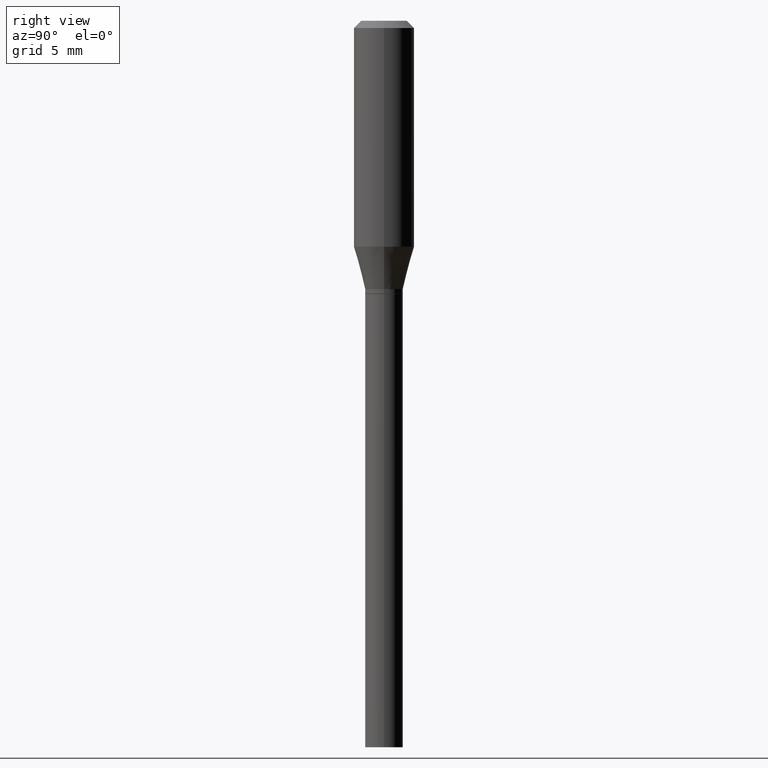
[diagram: clean part render]
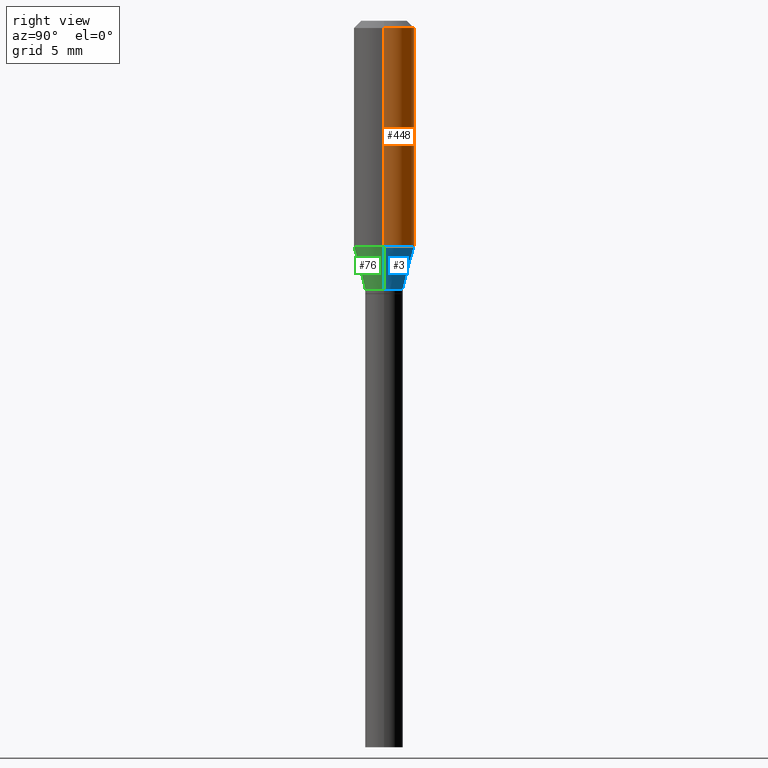
[diagram: same view with three faces highlighted in distinct colors, each labeled with its STEP entity id]
A machine part, right view with three faces highlighted in distinct colors.
Their STEP definitions:

[orange] entity #448 — the highlighted cylindrical surface (edge-blend (fillet) strip) has radius 1.5875 mm, axis along (-0, 0, 1).
#13 = CIRCLE ( 'NONE', #338, 0.06250000000000000000 ) ;
#14 = CIRCLE ( 'NONE', #347, 0.06250000000000000000 ) ;
#22 = DIRECTION ( 'NONE',  ( 1.000000000000000000, -6.982962677686266711E-15, 0.000000000000000000 ) ) ;
#62 = DIRECTION ( 'NONE',  ( -2.445468806185136597E-29, 3.491481338843145583E-15, 1.000000000000000000 ) ) ;
#70 = EDGE_CURVE ( 'NONE', #100, #153, #107, .T. ) ;
#73 = DIRECTION ( 'NONE',  ( -2.445468806185136877E-29, 3.491481338843145188E-15, 1.000000000000000000 ) ) ;
#75 = VECTOR ( 'NONE', #445, 39.37007874015748143 ) ;
#100 = VERTEX_POINT ( 'NONE', #196 ) ;
#107 = LINE ( 'NONE', #396, #135 ) ;
#108 = DIRECTION ( 'NONE',  ( -2.445468806185136597E-29, 3.491481338843145583E-15, 1.000000000000000000 ) ) ;
#109 = CARTESIAN_POINT ( 'NONE',  ( -0.06250000000000000000, -3.961301984854776856E-16, -0.01499999999999999944 ) ) ;
#111 = DIRECTION ( 'NONE',  ( 1.000000000000000000, -6.982962677686266711E-15, 0.000000000000000000 ) ) ;
#115 = FACE_OUTER_BOUND ( 'NONE', #198, .T. ) ;
#117 = ORIENTED_EDGE ( 'NONE', *, *, #285, .T. ) ;
#123 = CARTESIAN_POINT ( 'NONE',  ( 0.06250000000000000000, -4.364351673553916694E-16, 3.047610484872459871E-30 ) ) ;
#126 = LINE ( 'NONE', #123, #75 ) ;
#127 = VERTEX_POINT ( 'NONE', #330 ) ;
#135 = VECTOR ( 'NONE', #73, 39.37007874015748143 ) ;
#153 = VERTEX_POINT ( 'NONE', #109 ) ;
#154 = CARTESIAN_POINT ( 'NONE',  ( 0.06250000000000000000, -4.888073874380388472E-16, -0.01499999999999999944 ) ) ;
#193 = VERTEX_POINT ( 'NONE', #154 ) ;
#196 = CARTESIAN_POINT ( 'NONE',  ( -0.06250000000000000000, -1.183977386738370809E-15, -0.4662968060221312494 ) ) ;
#197 = EDGE_CURVE ( 'NONE', #193, #153, #13, .T. ) ;
#198 = EDGE_LOOP ( 'NONE', ( #117, #261, #305, #431 ) ) ;
#204 = EDGE_CURVE ( 'NONE', #127, #193, #126, .T. ) ;
#209 = DIRECTION ( 'NONE',  ( 1.000000000000000000, -6.982962677686266711E-15, 4.876176775795935793E-29 ) ) ;
#225 = CARTESIAN_POINT ( 'NONE',  ( 1.140314293550883428E-29, -1.628066596588433426E-15, -0.4662968060221312494 ) ) ;
#261 = ORIENTED_EDGE ( 'NONE', *, *, #70, .T. ) ;
#285 = EDGE_CURVE ( 'NONE', #127, #100, #14, .T. ) ;
#300 = CARTESIAN_POINT ( 'NONE',  ( 3.668203209277705088E-31, -5.237222008264718399E-17, -0.01499999999999999944 ) ) ;
#305 = ORIENTED_EDGE ( 'NONE', *, *, #197, .F. ) ;
#311 = CARTESIAN_POINT ( 'NONE',  ( 0.000000000000000000, 0.000000000000000000, 0.000000000000000000 ) ) ;
#330 = CARTESIAN_POINT ( 'NONE',  ( 0.06250000000000000000, -2.064501763943824898E-15, -0.4662968060221312494 ) ) ;
#338 = AXIS2_PLACEMENT_3D ( 'NONE', #300, #62, #111 ) ;
#347 = AXIS2_PLACEMENT_3D ( 'NONE', #225, #405, #22 ) ;
#352 = AXIS2_PLACEMENT_3D ( 'NONE', #311, #108, #209 ) ;
#361 = CYLINDRICAL_SURFACE ( 'NONE', #352, 0.06250000000000000000 ) ;
#396 = CARTESIAN_POINT ( 'NONE',  ( -0.06250000000000000000, 4.440892098500626162E-16, -3.074334431409316114E-30 ) ) ;
#405 = DIRECTION ( 'NONE',  ( -2.445468806185136597E-29, 3.491481338843145583E-15, 1.000000000000000000 ) ) ;
#431 = ORIENTED_EDGE ( 'NONE', *, *, #204, .F. ) ;
#445 = DIRECTION ( 'NONE',  ( -2.445468806185136877E-29, 3.491481338843145188E-15, 1.000000000000000000 ) ) ;
#448 = ADVANCED_FACE ( 'NONE', ( #115 ), #361, .T. ) ;

[blue] entity #3 — the highlighted conical surface has half-angle 15 deg.
#3 = ADVANCED_FACE ( 'NONE', ( #273 ), #358, .T. ) ;
#14 = CIRCLE ( 'NONE', #347, 0.06250000000000000000 ) ;
#22 = DIRECTION ( 'NONE',  ( 1.000000000000000000, -6.982962677686266711E-15, 0.000000000000000000 ) ) ;
#39 = CARTESIAN_POINT ( 'NONE',  ( 0.03899999999999990974, -2.206616206148866497E-15, -0.5540000000000000480 ) ) ;
#72 = ORIENTED_EDGE ( 'NONE', *, *, #140, .F. ) ;
#92 = DIRECTION ( 'NONE',  ( -2.445468806185136597E-29, 3.491481338843145583E-15, 1.000000000000000000 ) ) ;
#100 = VERTEX_POINT ( 'NONE', #196 ) ;
#102 = CARTESIAN_POINT ( 'NONE',  ( -0.03899999999999990974, -1.420573190755517475E-15, -0.5540000000000000480 ) ) ;
#112 = DIRECTION ( 'NONE',  ( -2.445468806185136597E-29, 3.491481338843145583E-15, 1.000000000000000000 ) ) ;
#127 = VERTEX_POINT ( 'NONE', #330 ) ;
#138 = VECTOR ( 'NONE', #174, 39.37007874015748854 ) ;
#140 = EDGE_CURVE ( 'NONE', #149, #127, #141, .T. ) ;
#141 = LINE ( 'NONE', #39, #138 ) ;
#149 = VERTEX_POINT ( 'NONE', #213 ) ;
#157 = EDGE_LOOP ( 'NONE', ( #427, #269, #219, #72 ) ) ;
#162 = LINE ( 'NONE', #277, #424 ) ;
#164 = AXIS2_PLACEMENT_3D ( 'NONE', #190, #92, #299 ) ;
#174 = DIRECTION ( 'NONE',  ( 0.2588190451025211836, 1.565188264969622559E-15, 0.9659258262890679791 ) ) ;
#176 = AXIS2_PLACEMENT_3D ( 'NONE', #417, #112, #249 ) ;
#190 = CARTESIAN_POINT ( 'NONE',  ( 1.354789718626565634E-29, -1.934280661719102868E-15, -0.5540000000000000480 ) ) ;
#196 = CARTESIAN_POINT ( 'NONE',  ( -0.06250000000000000000, -1.183977386738370809E-15, -0.4662968060221312494 ) ) ;
#213 = CARTESIAN_POINT ( 'NONE',  ( 0.03899999999999990974, -2.206616206148866497E-15, -0.5540000000000000480 ) ) ;
#219 = ORIENTED_EDGE ( 'NONE', *, *, #285, .F. ) ;
#225 = CARTESIAN_POINT ( 'NONE',  ( 1.140314293550883428E-29, -1.628066596588433426E-15, -0.4662968060221312494 ) ) ;
#227 = CIRCLE ( 'NONE', #164, 0.03899999999999990974 ) ;
#249 = DIRECTION ( 'NONE',  ( 1.000000000000000000, -6.982962677686268288E-15, 0.000000000000000000 ) ) ;
#269 = ORIENTED_EDGE ( 'NONE', *, *, #318, .T. ) ;
#273 = FACE_OUTER_BOUND ( 'NONE', #157, .T. ) ;
#274 = EDGE_CURVE ( 'NONE', #149, #292, #227, .T. ) ;
#277 = CARTESIAN_POINT ( 'NONE',  ( -0.03899999999999990974, -1.657168994772664338E-15, -0.5540000000000000480 ) ) ;
#285 = EDGE_CURVE ( 'NONE', #127, #100, #14, .T. ) ;
#292 = VERTEX_POINT ( 'NONE', #102 ) ;
#299 = DIRECTION ( 'NONE',  ( 1.000000000000000000, -6.982962677686268288E-15, 0.000000000000000000 ) ) ;
#318 = EDGE_CURVE ( 'NONE', #292, #100, #162, .T. ) ;
#330 = CARTESIAN_POINT ( 'NONE',  ( 0.06250000000000000000, -2.064501763943824898E-15, -0.4662968060221312494 ) ) ;
#347 = AXIS2_PLACEMENT_3D ( 'NONE', #225, #405, #22 ) ;
#358 = CONICAL_SURFACE ( 'NONE', #176, 0.03899999999999990974, 0.2617993877991499074 ) ;
#405 = DIRECTION ( 'NONE',  ( -2.445468806185136597E-29, 3.491481338843145583E-15, 1.000000000000000000 ) ) ;
#417 = CARTESIAN_POINT ( 'NONE',  ( 1.354789718626565634E-29, -1.934280661719102868E-15, -0.5540000000000000480 ) ) ;
#424 = VECTOR ( 'NONE', #426, 39.37007874015748854 ) ;
#426 = DIRECTION ( 'NONE',  ( -0.2588190451025211836, 5.211531920934547886E-15, 0.9659258262890679791 ) ) ;
#427 = ORIENTED_EDGE ( 'NONE', *, *, #274, .T. ) ;

[green] entity #76 — the highlighted conical surface has half-angle 15 deg.
#4 = ORIENTED_EDGE ( 'NONE', *, *, #140, .T. ) ;
#39 = CARTESIAN_POINT ( 'NONE',  ( 0.03899999999999990974, -2.206616206148866497E-15, -0.5540000000000000480 ) ) ;
#49 = EDGE_CURVE ( 'NONE', #292, #149, #423, .T. ) ;
#76 = ADVANCED_FACE ( 'NONE', ( #460 ), #216, .T. ) ;
#79 = CARTESIAN_POINT ( 'NONE',  ( 1.354789718626565634E-29, -1.934280661719102868E-15, -0.5540000000000000480 ) ) ;
#100 = VERTEX_POINT ( 'NONE', #196 ) ;
#102 = CARTESIAN_POINT ( 'NONE',  ( -0.03899999999999990974, -1.420573190755517475E-15, -0.5540000000000000480 ) ) ;
#106 = ORIENTED_EDGE ( 'NONE', *, *, #337, .F. ) ;
#116 = DIRECTION ( 'NONE',  ( 1.000000000000000000, -6.982962677686266711E-15, 0.000000000000000000 ) ) ;
#127 = VERTEX_POINT ( 'NONE', #330 ) ;
#138 = VECTOR ( 'NONE', #174, 39.37007874015748854 ) ;
#140 = EDGE_CURVE ( 'NONE', #149, #127, #141, .T. ) ;
#141 = LINE ( 'NONE', #39, #138 ) ;
#149 = VERTEX_POINT ( 'NONE', #213 ) ;
#162 = LINE ( 'NONE', #277, #424 ) ;
#166 = ORIENTED_EDGE ( 'NONE', *, *, #318, .F. ) ;
#174 = DIRECTION ( 'NONE',  ( 0.2588190451025211836, 1.565188264969622559E-15, 0.9659258262890679791 ) ) ;
#192 = CIRCLE ( 'NONE', #331, 0.06250000000000000000 ) ;
#196 = CARTESIAN_POINT ( 'NONE',  ( -0.06250000000000000000, -1.183977386738370809E-15, -0.4662968060221312494 ) ) ;
#207 = EDGE_LOOP ( 'NONE', ( #166, #349, #4, #106 ) ) ;
#212 = DIRECTION ( 'NONE',  ( -2.445468806185136597E-29, 3.491481338843145583E-15, 1.000000000000000000 ) ) ;
#213 = CARTESIAN_POINT ( 'NONE',  ( 0.03899999999999990974, -2.206616206148866497E-15, -0.5540000000000000480 ) ) ;
#214 = DIRECTION ( 'NONE',  ( -2.445468806185136597E-29, 3.491481338843145583E-15, 1.000000000000000000 ) ) ;
#216 = CONICAL_SURFACE ( 'NONE', #246, 0.03899999999999990974, 0.2617993877991499074 ) ;
#246 = AXIS2_PLACEMENT_3D ( 'NONE', #462, #456, #422 ) ;
#251 = CARTESIAN_POINT ( 'NONE',  ( 1.140314293550883428E-29, -1.628066596588433426E-15, -0.4662968060221312494 ) ) ;
#277 = CARTESIAN_POINT ( 'NONE',  ( -0.03899999999999990974, -1.657168994772664338E-15, -0.5540000000000000480 ) ) ;
#292 = VERTEX_POINT ( 'NONE', #102 ) ;
#318 = EDGE_CURVE ( 'NONE', #292, #100, #162, .T. ) ;
#330 = CARTESIAN_POINT ( 'NONE',  ( 0.06250000000000000000, -2.064501763943824898E-15, -0.4662968060221312494 ) ) ;
#331 = AXIS2_PLACEMENT_3D ( 'NONE', #251, #214, #116 ) ;
#337 = EDGE_CURVE ( 'NONE', #100, #127, #192, .T. ) ;
#349 = ORIENTED_EDGE ( 'NONE', *, *, #49, .T. ) ;
#363 = DIRECTION ( 'NONE',  ( 1.000000000000000000, -6.982962677686268288E-15, 0.000000000000000000 ) ) ;
#422 = DIRECTION ( 'NONE',  ( 1.000000000000000000, -6.982962677686268288E-15, 0.000000000000000000 ) ) ;
#423 = CIRCLE ( 'NONE', #463, 0.03899999999999990974 ) ;
#424 = VECTOR ( 'NONE', #426, 39.37007874015748854 ) ;
#426 = DIRECTION ( 'NONE',  ( -0.2588190451025211836, 5.211531920934547886E-15, 0.9659258262890679791 ) ) ;
#456 = DIRECTION ( 'NONE',  ( -2.445468806185136597E-29, 3.491481338843145583E-15, 1.000000000000000000 ) ) ;
#460 = FACE_OUTER_BOUND ( 'NONE', #207, .T. ) ;
#462 = CARTESIAN_POINT ( 'NONE',  ( 1.354789718626565634E-29, -1.934280661719102868E-15, -0.5540000000000000480 ) ) ;
#463 = AXIS2_PLACEMENT_3D ( 'NONE', #79, #212, #363 ) ;